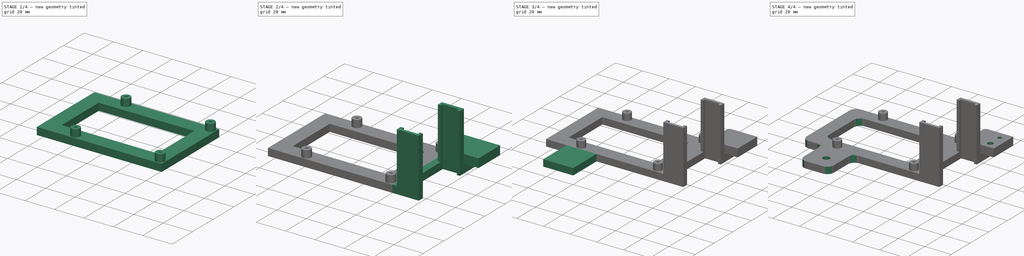
[diagram: build sequence overview — one tinted view per stage of 4, left to right]
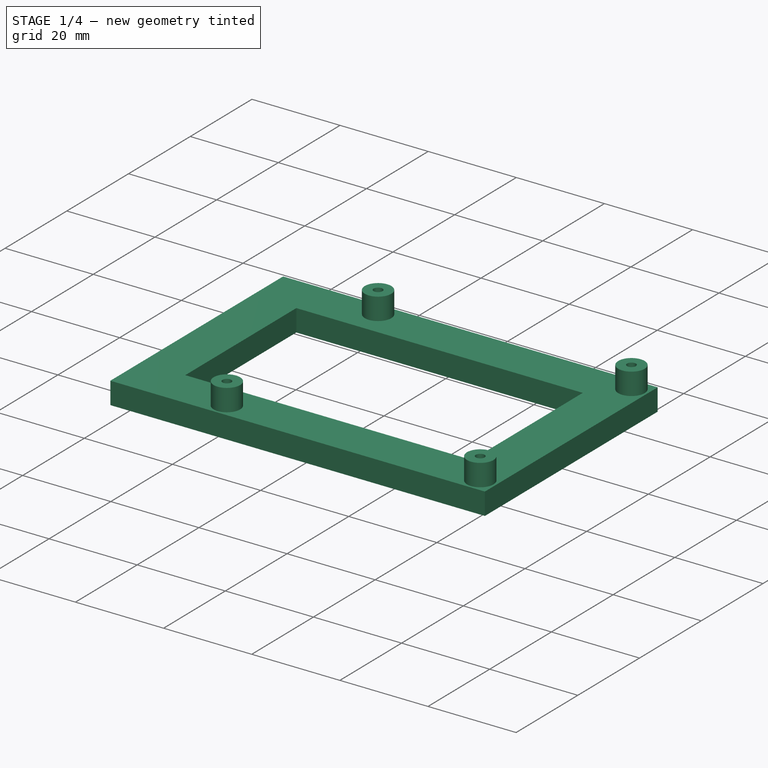
[diagram: stage 1 of 4 — iso view after this stage's code; geometry added in this stage tinted green]
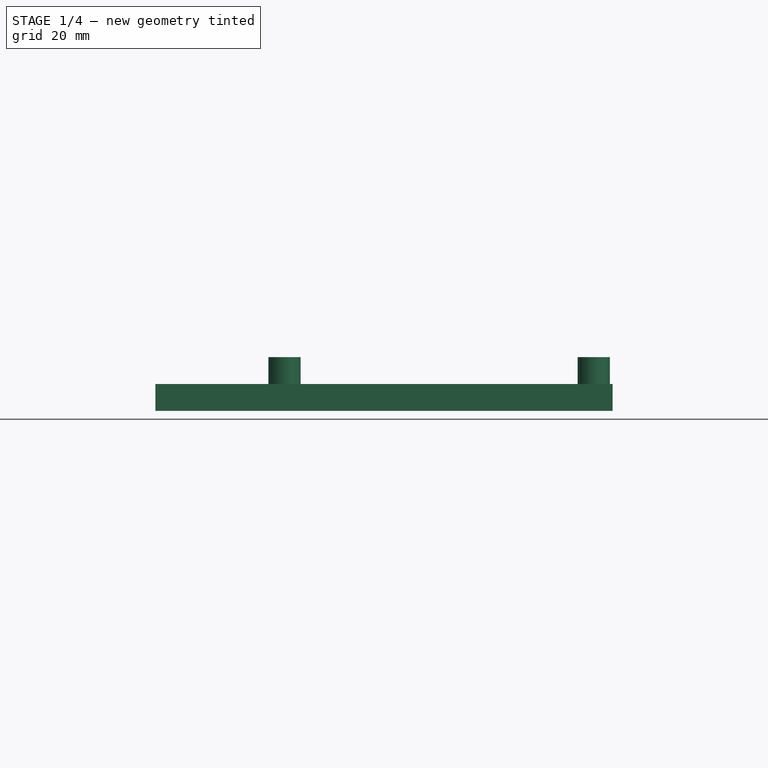
[diagram: stage 1 of 4 — front view after this stage's code; geometry added in this stage tinted green]
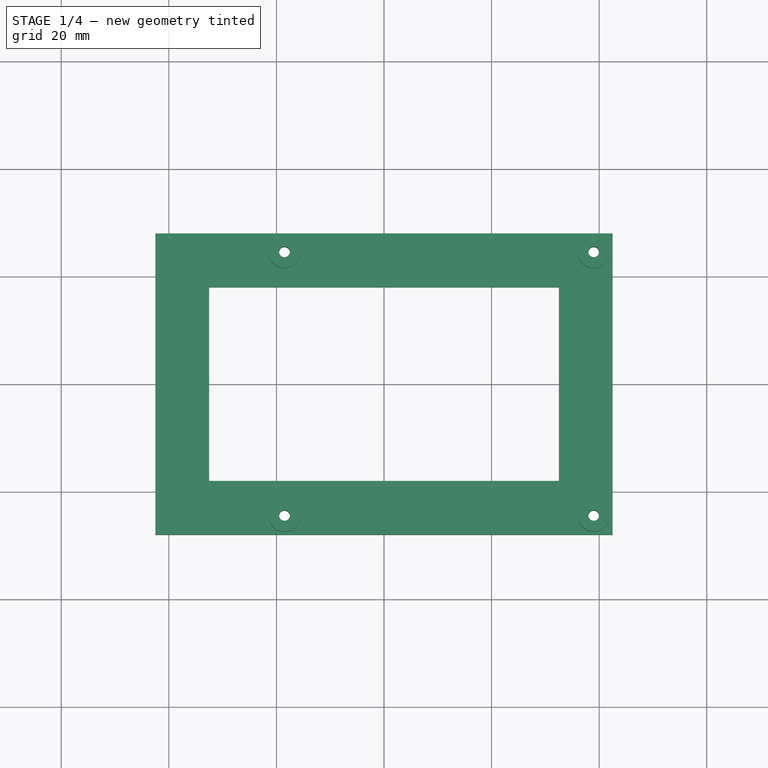
[diagram: stage 1 of 4 — top view after this stage's code; geometry added in this stage tinted green]
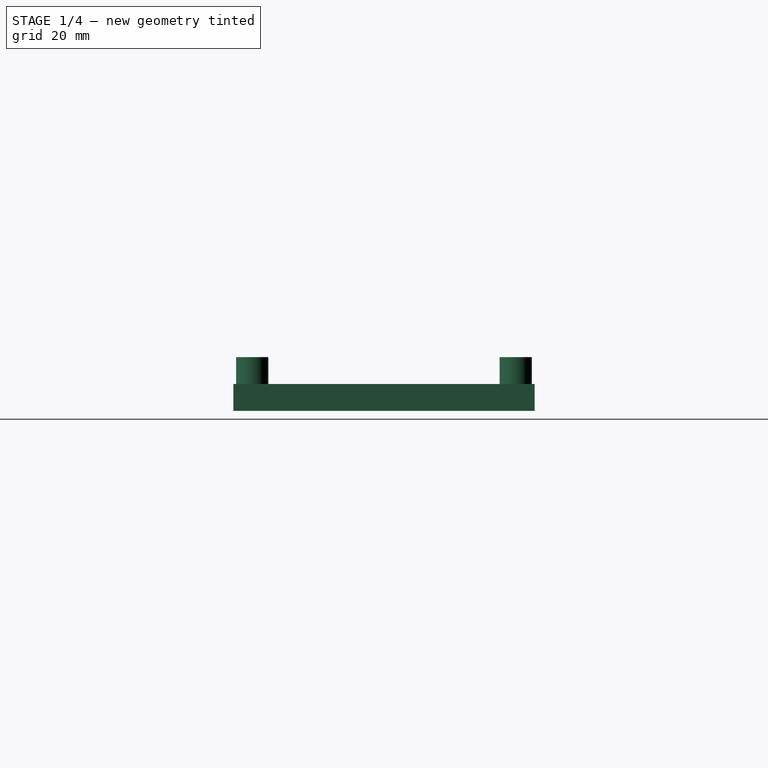
[diagram: stage 1 of 4 — right view after this stage's code; geometry added in this stage tinted green]
FCSTD DOCUMENT  (FreeCAD 0.16R6706 (Git))
Label: PS Raspberry
License: All rights reserved
LicenseURL: http://en.wikipedia.org/wiki/All_rights_reserved
objects: Sketcher::SketchObject×10, PartDesign::Pad×6, PartDesign::Pocket×4, PartDesign::Fillet×4
note: 34 computed .brp shape members not serialized (recipe doc carries the construction recipe); baked Part::Feature solids carry a one-line shape summary decoded from their .brp

FEATURE [Sketcher::SketchObject] Sketch
  sketch-geometry (4):
    g0: LineSegment StartX=-42.5 StartY=28 StartZ=0 EndX=42.5 EndY=28 EndZ=0
    g1: LineSegment StartX=42.5 StartY=28 StartZ=0 EndX=42.5 EndY=-28 EndZ=0
    g2: LineSegment StartX=42.5 StartY=-28 StartZ=0 EndX=-42.5 EndY=-28 EndZ=0
    g3: LineSegment StartX=-42.5 StartY=-28 StartZ=0 EndX=-42.5 EndY=28 EndZ=0
  constraints (12):
    c: Coincident(g0,g1)
    c: Coincident(g1,g2)
    c: Coincident(g2,g3)
    c: Coincident(g3,g0)
    c: Horizontal(g0)
    c: Horizontal(g2)
    c: Vertical(g1)
    c: Vertical(g3)
    c: DistanceX(g0,g0) = 85
    c: DistanceY(g3,g3) = 56
    c: DistanceY(g-1,g0) = 28
    c: DistanceX(g0,g-1) = 42.5
FEATURE [PartDesign::Pad] Pad
  Length = 5
  Length2 = 100
  Sketch = -> Sketch
  Type = 0
FEATURE [Sketcher::SketchObject] Sketch001
  ExternalGeometry = -> [Pad]
  Placement = pos=(0,0,5) rot=(0,0,1;0rad)
  Support = -> Pad [Face6]
  sketch-geometry (4):
    g0: LineSegment StartX=-32.5 StartY=18 StartZ=0 EndX=32.5 EndY=18 EndZ=0
    g1: LineSegment StartX=32.5 StartY=18 StartZ=0 EndX=32.5 EndY=-18 EndZ=0
    g2: LineSegment StartX=32.5 StartY=-18 StartZ=0 EndX=-32.5 EndY=-18 EndZ=0
    g3: LineSegment StartX=-32.5 StartY=-18 StartZ=0 EndX=-32.5 EndY=18 EndZ=0
  constraints (12):
    c: Coincident(g0,g1)
    c: Coincident(g1,g2)
    c: Coincident(g2,g3)
    c: Coincident(g3,g0)
    c: Horizontal(g0)
    c: Horizontal(g2)
    c: Vertical(g1)
    c: Vertical(g3)
    c: DistanceX(g0,g-5) = 10
    c: DistanceX(g-4,g0) = 10
    c: DistanceY(g0,g-4) = 10
    c: DistanceY(g-6,g1) = 10
FEATURE [PartDesign::Pocket] Pocket
  Length = 5
  Sketch = -> Sketch001
  Type = 1
FEATURE [Sketcher::SketchObject] Sketch002
  ExternalGeometry = -> [Pocket]
  Placement = pos=(0,0,5) rot=(0,0,1;0rad)
  Support = -> Pocket [Face5]
  sketch-geometry (4):
    g0: Circle CenterX=39 CenterY=24.5 CenterZ=0 NormalX=0 NormalY=0 NormalZ=1 Radius=3
    g1: Circle CenterX=-18.5 CenterY=24.5 CenterZ=0 NormalX=0 NormalY=0 NormalZ=1 Radius=3
    g2: Circle CenterX=-18.5 CenterY=-24.5 CenterZ=0 NormalX=0 NormalY=0 NormalZ=1 Radius=3
    g3: Circle CenterX=39 CenterY=-24.5 CenterZ=0 NormalX=0 NormalY=0 NormalZ=1 Radius=3
  constraints (12):
    c: Radius(g0) = 3
    c: Radius(g1) = 3
    c: Radius(g3) = 3
    c: Radius(g2) = 3
    c: DistanceY(g3,g0) = 49
    c: DistanceY(g-1,g0) = 24.5
    c: DistanceX(g0,g-3) = 3.5
    c: DistanceX(g3,g-3) = 3.5
    c: DistanceX(g1,g0) = 57.5
    c: DistanceX(g2,g3) = 57.5
    c: DistanceY(g-1,g1) = 24.5
    c: DistanceY(g2,g1) = 49
FEATURE [PartDesign::Pad] Pad001
  Length = 5
  Length2 = 100
  Sketch = -> Sketch002
  Type = 0
FEATURE [Sketcher::SketchObject] Sketch003
  ExternalGeometry = -> [Pad001]
  Placement = pos=(0,0,10) rot=(0,0,1;0rad)
  Support = -> Pad001 [Face18]
  sketch-geometry (4):
    g0: Circle CenterX=-18.5 CenterY=24.5 CenterZ=0 NormalX=0 NormalY=0 NormalZ=1 Radius=1
    g1: Circle CenterX=-18.5 CenterY=-24.5 CenterZ=0 NormalX=0 NormalY=0 NormalZ=1 Radius=1
    g2: Circle CenterX=39 CenterY=24.5 CenterZ=0 NormalX=0 NormalY=0 NormalZ=1 Radius=1
    g3: Circle CenterX=39 CenterY=-24.5 CenterZ=0 NormalX=0 NormalY=0 NormalZ=1 Radius=1
  constraints (8):
    c: Coincident(g0,g-3)
    c: Coincident(g1,g-6)
    c: Coincident(g2,g-4)
    c: Coincident(g3,g-5)
    c: Radius(g3) = 1
    c: Radius(g1) = 1
    c: Radius(g0) = 1
    c: Radius(g2) = 1
FEATURE [PartDesign::Pocket] Pocket001
  Length = 5
  Sketch = -> Sketch003
  Type = 1
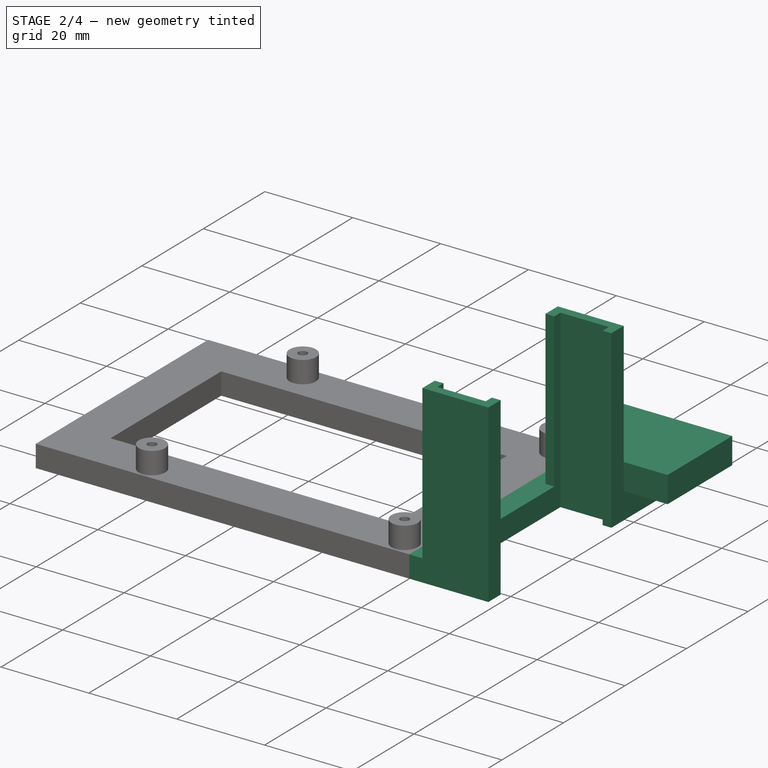
[diagram: stage 2 of 4 — iso view after this stage's code; geometry added in this stage tinted green]
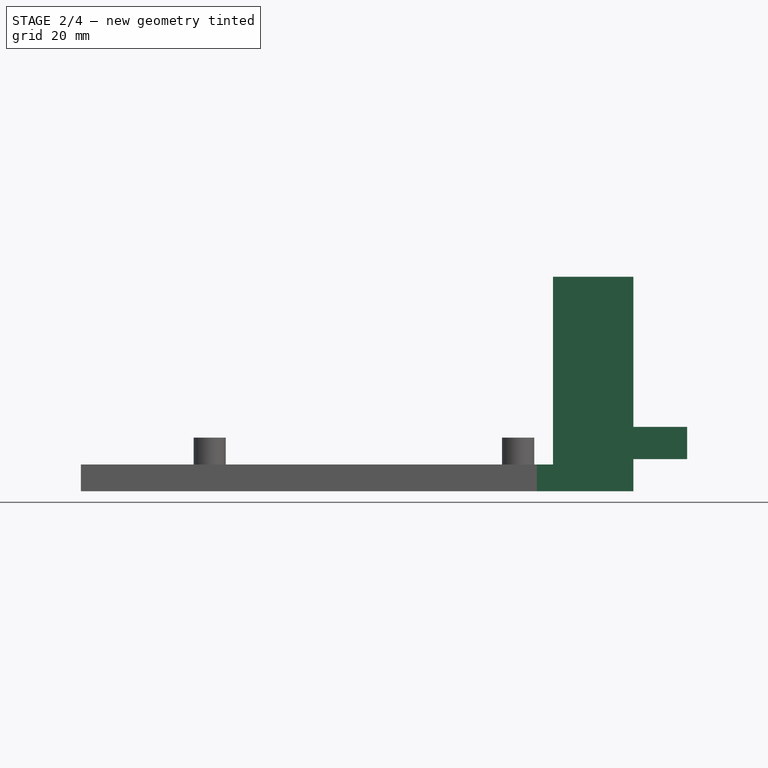
[diagram: stage 2 of 4 — front view after this stage's code; geometry added in this stage tinted green]
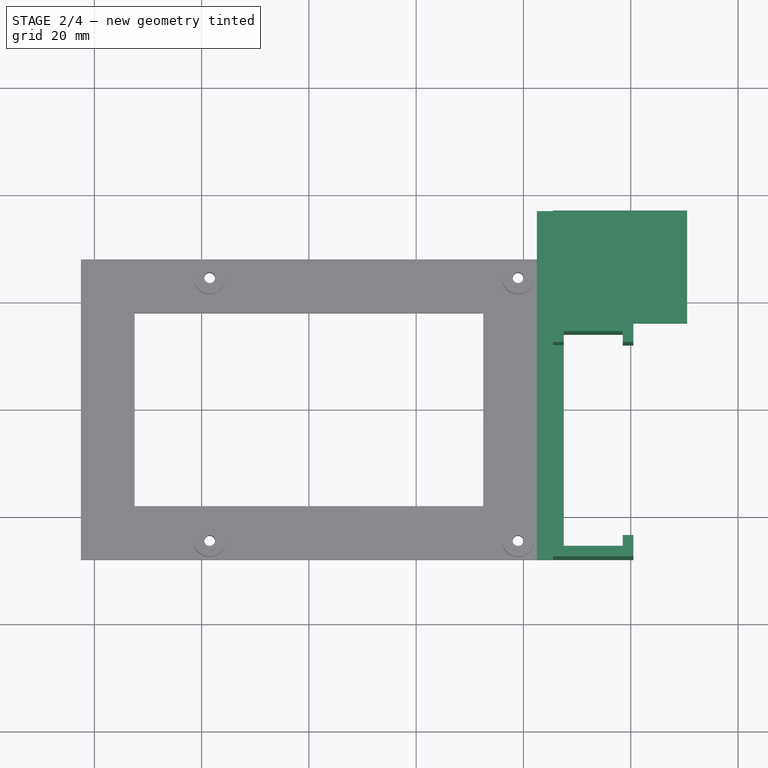
[diagram: stage 2 of 4 — top view after this stage's code; geometry added in this stage tinted green]
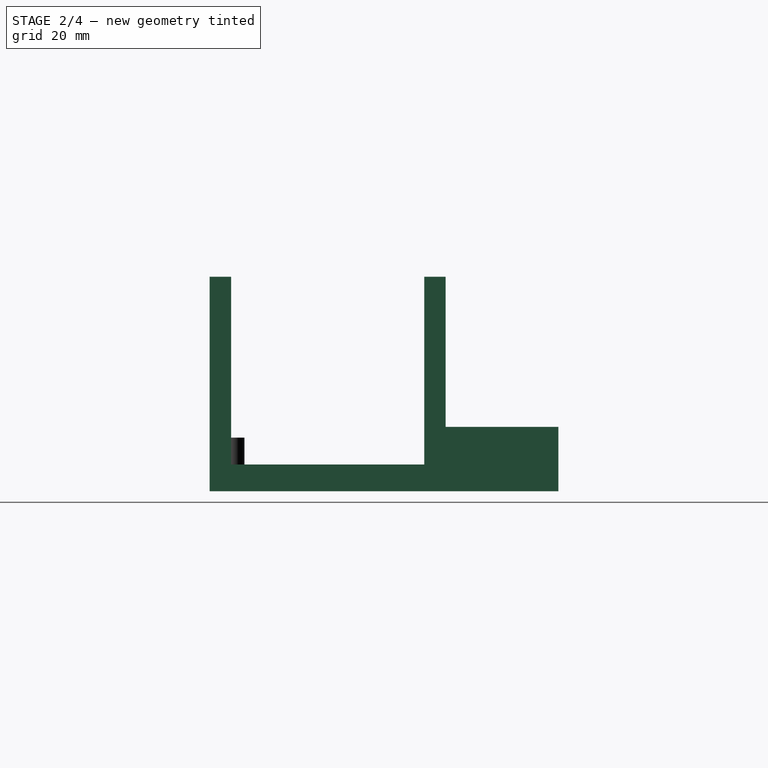
[diagram: stage 2 of 4 — right view after this stage's code; geometry added in this stage tinted green]
FEATURE [Sketcher::SketchObject] Sketch004
  ExternalGeometry = -> [Pocket001]
  Placement = pos=(42.5,0,0) rot=(0.57735,0.57735,0.57735;2.0944rad)
  Support = -> Pocket001 [Face3]
  sketch-geometry (4):
    g0: LineSegment StartX=-28 StartY=5 StartZ=0 EndX=16 EndY=5 EndZ=0
    g1: LineSegment StartX=16 StartY=5 StartZ=0 EndX=16 EndY=0 EndZ=0
    g2: LineSegment StartX=16 StartY=0 StartZ=0 EndX=-28 EndY=0 EndZ=0
    g3: LineSegment StartX=-28 StartY=0 StartZ=0 EndX=-28 EndY=5 EndZ=0
  constraints (12):
    c: Coincident(g0,g1)
    c: Coincident(g1,g2)
    c: Coincident(g2,g3)
    c: Coincident(g3,g0)
    c: Horizontal(g0)
    c: Horizontal(g2)
    c: Vertical(g1)
    c: Vertical(g3)
    c: DistanceX(g2,g2) = 44
    c: DistanceY(g1,g1) = 5
    c: DistanceX(g2,g-4) = 0
    c: DistanceY(g2,g-4) = 0
FEATURE [PartDesign::Pad] Pad002
  Length = 5
  Length2 = 100
  Sketch = -> Sketch004
  Type = 0
FEATURE [Sketcher::SketchObject] Sketch005
  ExternalGeometry = -> [Pad002]
  Placement = pos=(0,0,0) rot=(1,0,0;3.14159rad)
  Support = -> Pad002 [Face8]
  sketch-geometry (16):
    g0: LineSegment StartX=45.5 StartY=28 StartZ=0 EndX=45.5 EndY=24 EndZ=0
    g1: LineSegment StartX=45.5 StartY=24 StartZ=0 EndX=47.5 EndY=24 EndZ=0
    g2: LineSegment StartX=47.5 StartY=24 StartZ=0 EndX=47.5 EndY=26 EndZ=0
    g3: LineSegment StartX=47.5 StartY=26 StartZ=0 EndX=58.5 EndY=26 EndZ=0
    g4: LineSegment StartX=58.5 StartY=26 StartZ=0 EndX=58.5 EndY=24 EndZ=0
    g5: LineSegment StartX=58.5 StartY=24 StartZ=0 EndX=60.5 EndY=24 EndZ=0
    g6: LineSegment StartX=60.5 StartY=24 StartZ=0 EndX=60.5 EndY=28 EndZ=0
    g7: LineSegment StartX=60.5 StartY=28 StartZ=0 EndX=45.5 EndY=28 EndZ=0
    g8: LineSegment StartX=45.5 StartY=-16 StartZ=0 EndX=45.5 EndY=-12 EndZ=0
    g9: LineSegment StartX=45.5 StartY=-12 StartZ=0 EndX=47.5 EndY=-12 EndZ=0
    g10: LineSegment StartX=47.5 StartY=-12 StartZ=0 EndX=47.5 EndY=-14 EndZ=0
    g11: LineSegment StartX=47.5 StartY=-14 StartZ=0 EndX=58.5 EndY=-14 EndZ=0
    g12: LineSegment StartX=58.5 StartY=-14 StartZ=0 EndX=58.5 EndY=-12 EndZ=0
    g13: LineSegment StartX=58.5 StartY=-12 StartZ=0 EndX=60.5 EndY=-12 EndZ=0
    g14: LineSegment StartX=60.5 StartY=-12 StartZ=0 EndX=60.5 EndY=-16 EndZ=0
    g15: LineSegment StartX=60.5 StartY=-16 StartZ=0 EndX=45.5 EndY=-16 EndZ=0
  constraints (48):
    c: PointOnObject(g0,g-3)
    c: Vertical(g0)
    c: Coincident(g0,g1)
    c: PointOnObject(g1,g-4)
    c: Coincident(g1,g2)
    c: PointOnObject(g2,g-4)
    c: Coincident(g2,g3)
    c: Horizontal(g3)
    c: Coincident(g3,g4)
    c: Vertical(g4)
    c: Coincident(g4,g5)
    c: Coincident(g5,g6)
    c: Vertical(g6)
    c: Coincident(g6,g7)
    c: Coincident(g7,g0)
    c: Horizontal(g7)
    c: Horizontal(g5)
    c: Horizontal(g1)
    c: PointOnObject(g8,g-5)
    c: Vertical(g8)
    c: Coincident(g8,g9)
    c: PointOnObject(g9,g-4)
    c: Horizontal(g9)
    c: Coincident(g9,g10)
    c: PointOnObject(g10,g-4)
    c: Coincident(g10,g11)
    c: Horizontal(g11)
    c: Coincident(g11,g12)
    c: Vertical(g12)
    c: Coincident(g12,g13)
    c: Horizontal(g13)
    c: Coincident(g13,g14)
    c: Vertical(g14)
    c: Coincident(g14,g15)
    c: Coincident(g15,g8)
    c: Horizontal(g15)
    c: DistanceY(g4,g3) = 2
    c: DistanceY(g3,g6) = 2
    c: DistanceY(g1,g2) = 2
    c: DistanceX(g4,g5) = 2
    c: DistanceX(g0,g1) = 2
    c: DistanceX(g2,g3) = 11
    c: DistanceX(g11,g14) = 2
    c: DistanceX(g8,g10) = 2
    c: DistanceY(g10,g9) = 2
    c: DistanceY(g12,g12) = 2
    c: DistanceY(g14,g11) = 2
    c: DistanceX(g10,g11) = 11
FEATURE [PartDesign::Pad] Pad003
  Length = 40
  Length2 = 100
  Reversed = true
  Sketch = -> Sketch005
  Type = 0
FEATURE [Sketcher::SketchObject] Sketch006
  ExternalGeometry = -> [Pad003]
  Placement = pos=(0,16,0) rot=(0,0.707107,0.707107;3.14159rad)
  Support = -> Pad003 [Face36]
  sketch-geometry (8):
    g0: LineSegment StartX=-42.5 StartY=0 StartZ=0 EndX=-42.5 EndY=5 EndZ=0
    g1: LineSegment StartX=-42.5 StartY=5 StartZ=0 EndX=-45.5 EndY=5 EndZ=0
    g2: LineSegment StartX=-45.5 StartY=5 StartZ=0 EndX=-45.5 EndY=12 EndZ=0
    g3: LineSegment StartX=-45.5 StartY=12 StartZ=0 EndX=-70.5 EndY=12 EndZ=0
    g4: LineSegment StartX=-70.5 StartY=12 StartZ=0 EndX=-70.5 EndY=6 EndZ=0
    g5: LineSegment StartX=-70.5 StartY=6 StartZ=0 EndX=-60.5 EndY=6 EndZ=0
    g6: LineSegment StartX=-60.5 StartY=6 StartZ=0 EndX=-60.5 EndY=0 EndZ=0
    g7: LineSegment StartX=-60.5 StartY=0 StartZ=0 EndX=-42.5 EndY=0 EndZ=0
  constraints (20):
    c: Coincident(g-8,g0)
    c: Coincident(g0,g-4)
    c: Coincident(g0,g1)
    c: Coincident(g1,g-5)
    c: Coincident(g1,g2)
    c: PointOnObject(g2,g-5)
    c: Coincident(g2,g3)
    c: Horizontal(g3)
    c: Coincident(g3,g4)
    c: Vertical(g4)
    c: Coincident(g4,g5)
    c: PointOnObject(g5,g-6)
    c: Horizontal(g5)
    c: Coincident(g5,g6)
    c: Coincident(g6,g-7)
    c: Coincident(g6,g7)
    c: Coincident(g7,g0)
    c: DistanceX(g5,g5) = 10
    c: DistanceY(g-9,g2) = 12
    c: DistanceY(g6,g5) = 6
FEATURE [PartDesign::Pad] Pad004
  Length = 21
  Length2 = 100
  Sketch = -> Sketch006
  Type = 0
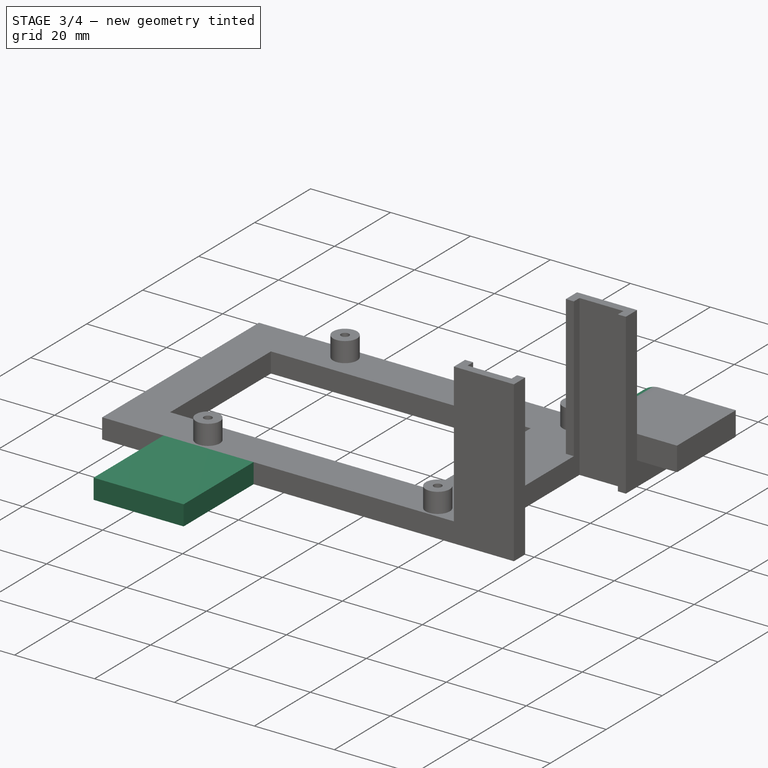
[diagram: stage 3 of 4 — iso view after this stage's code; geometry added in this stage tinted green]
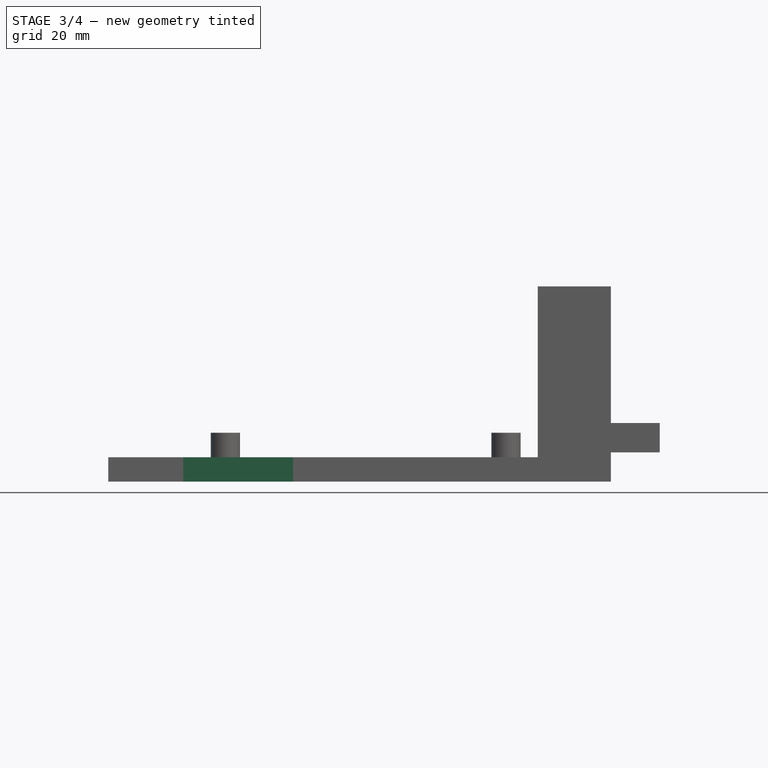
[diagram: stage 3 of 4 — front view after this stage's code; geometry added in this stage tinted green]
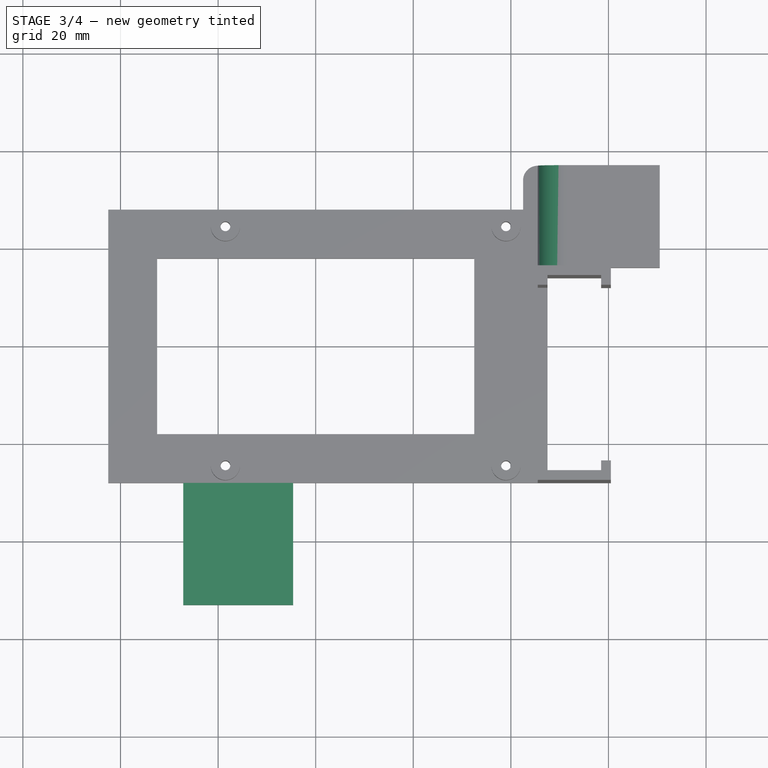
[diagram: stage 3 of 4 — top view after this stage's code; geometry added in this stage tinted green]
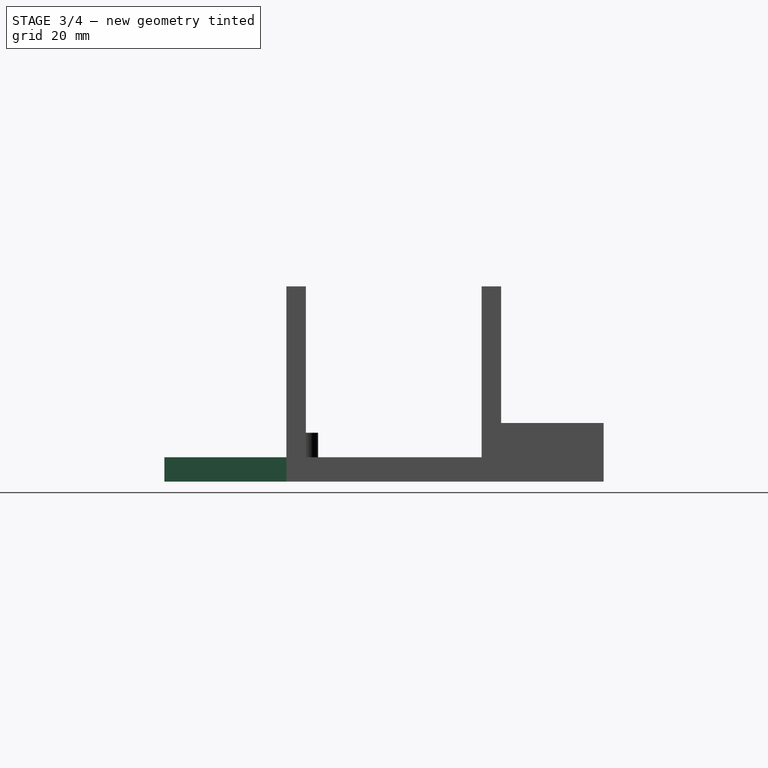
[diagram: stage 3 of 4 — right view after this stage's code; geometry added in this stage tinted green]
FEATURE [PartDesign::Fillet] Fillet
  Base = -> Pad004 [Edge96]
  Radius = 6
FEATURE [PartDesign::Fillet] Fillet001
  Base = -> Fillet [Edge5]
  Radius = 3
FEATURE [Sketcher::SketchObject] Sketch007
  ExternalGeometry = -> [Fillet001]
  Placement = pos=(0,-28,0) rot=(1,0,0;1.5708rad)
  Support = -> Fillet001 [Face25]
  sketch-geometry (4):
    g0: LineSegment StartX=-27.1413 StartY=5 StartZ=0 EndX=-4.62448 EndY=5 EndZ=0
    g1: LineSegment StartX=-4.62448 StartY=5 StartZ=0 EndX=-4.62448 EndY=0 EndZ=0
    g2: LineSegment StartX=-4.62448 StartY=0 StartZ=0 EndX=-27.1413 EndY=0 EndZ=0
    g3: LineSegment StartX=-27.1413 StartY=0 StartZ=0 EndX=-27.1413 EndY=5 EndZ=0
  constraints (10):
    c: Coincident(g0,g1)
    c: Coincident(g1,g2)
    c: Coincident(g2,g3)
    c: Coincident(g3,g0)
    c: Horizontal(g0)
    c: Horizontal(g2)
    c: Vertical(g1)
    c: Vertical(g3)
    c: PointOnObject(g0,g-3)
    c: PointOnObject(g1,g-4)
FEATURE [PartDesign::Pad] Pad005
  Length = 25
  Length2 = 100
  Sketch = -> Sketch007
  Type = 0
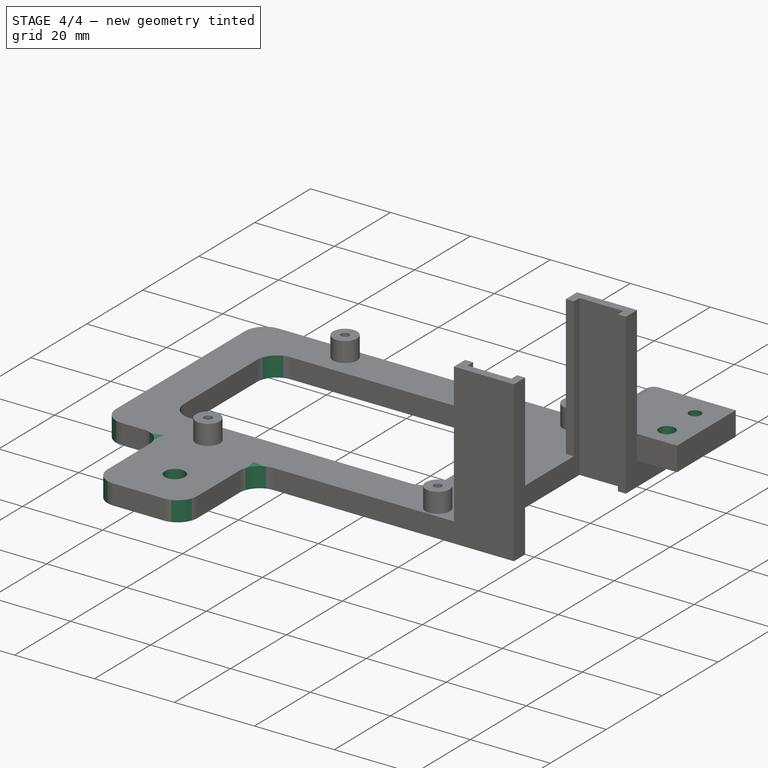
[diagram: stage 4 of 4 — iso view after this stage's code; geometry added in this stage tinted green]
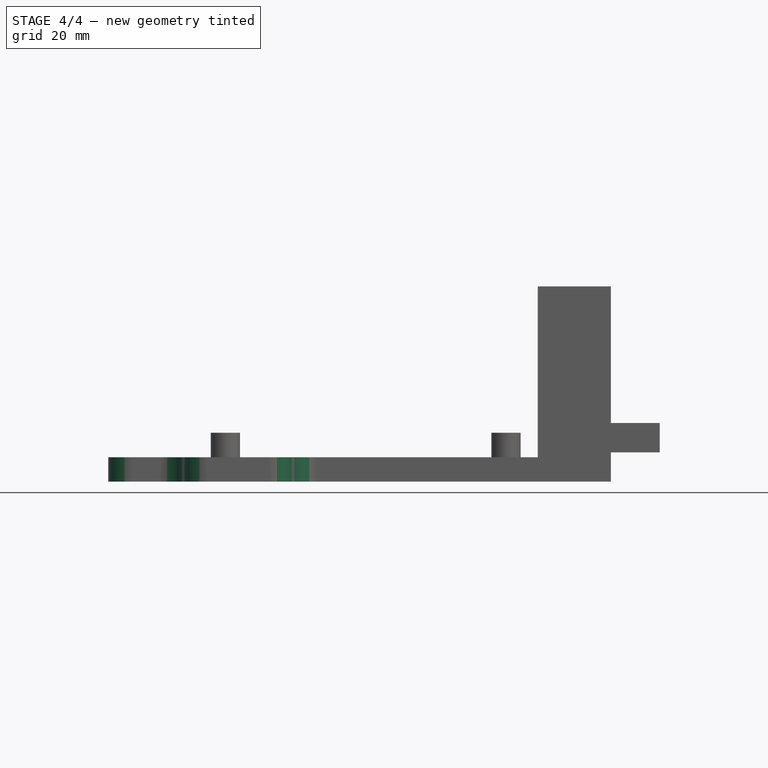
[diagram: stage 4 of 4 — front view after this stage's code; geometry added in this stage tinted green]
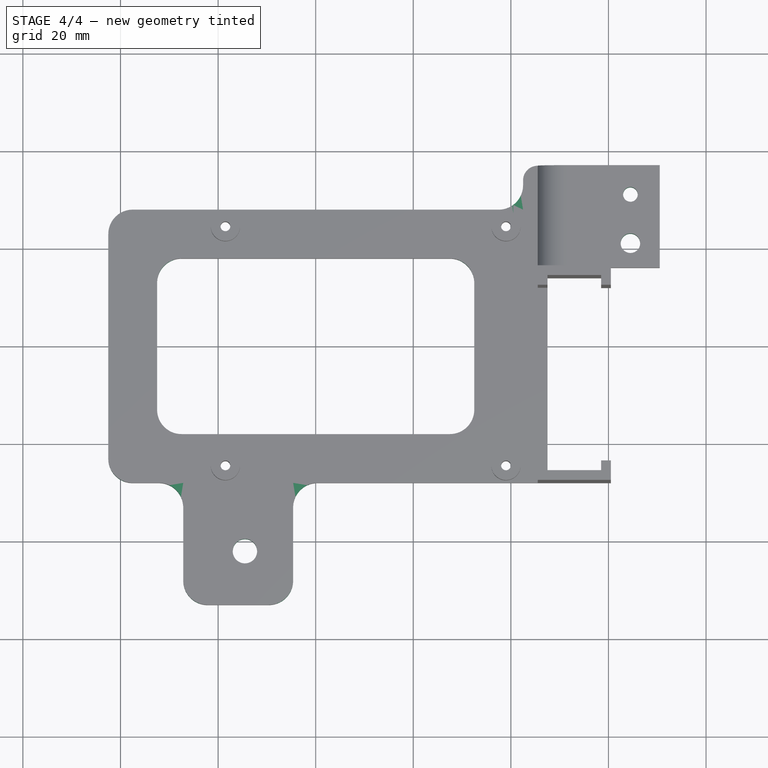
[diagram: stage 4 of 4 — top view after this stage's code; geometry added in this stage tinted green]
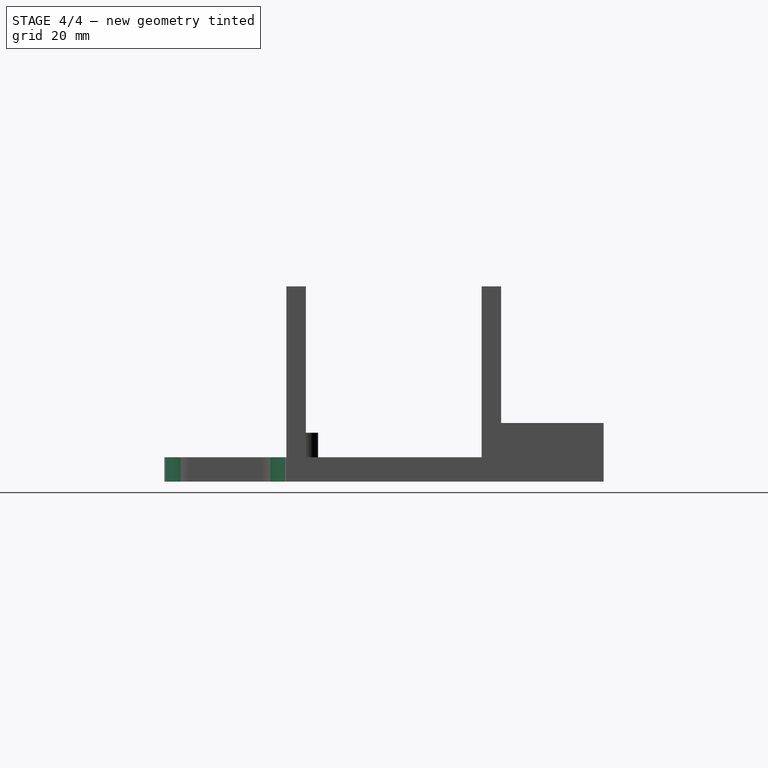
[diagram: stage 4 of 4 — right view after this stage's code; geometry added in this stage tinted green]
FEATURE [PartDesign::Fillet] Fillet002
  Base = -> Pad005 [Edge55,Edge58,Edge57,Edge43,Edge42,Edge12,Edge4,Edge2,Edge8,Edge56]
  Radius = 5
FEATURE [PartDesign::Fillet] Fillet003
  Base = -> Fillet002 [Edge71]
  Radius = 5
FEATURE [Sketcher::SketchObject] Sketch008
  ExternalGeometry = -> [Fillet003]
  Placement = pos=(0,0,5) rot=(0,0,1;0rad)
  Support = -> Fillet003 [Face11]
  sketch-geometry (1):
    g0: Circle CenterX=-14.5 CenterY=-42 CenterZ=0 NormalX=0 NormalY=0 NormalZ=1 Radius=2.5
  constraints (3):
    c: DistanceX(g0,g-3) = 75
    c: DistanceY(g0,g-4) = 17.5
    c: Radius(g0) = 2.5
FEATURE [PartDesign::Pocket] Pocket002
  Length = 5
  Sketch = -> Sketch008
  Type = 1
FEATURE [Sketcher::SketchObject] Sketch009
  ExternalGeometry = -> [Pocket002]
  Placement = pos=(0,0,12) rot=(0,0,1;0rad)
  Support = -> Pocket002 [Face70]
  sketch-geometry (2):
    g0: Circle CenterX=64.5 CenterY=31 CenterZ=0 NormalX=0 NormalY=0 NormalZ=1 Radius=1.5
    g1: Circle CenterX=64.5 CenterY=21 CenterZ=0 NormalX=0 NormalY=0 NormalZ=1 Radius=2
  constraints (6):
    c: Radius(g1) = 2
    c: Radius(g0) = 1.5
    c: DistanceY(g-3,g1) = 9
    c: DistanceY(g1,g0) = 10
    c: DistanceX(g-4,g0) = 4
    c: DistanceX(g-4,g1) = 4
FEATURE [PartDesign::Pocket] Pocket003
  Length = 5
  Sketch = -> Sketch009
  Type = 1
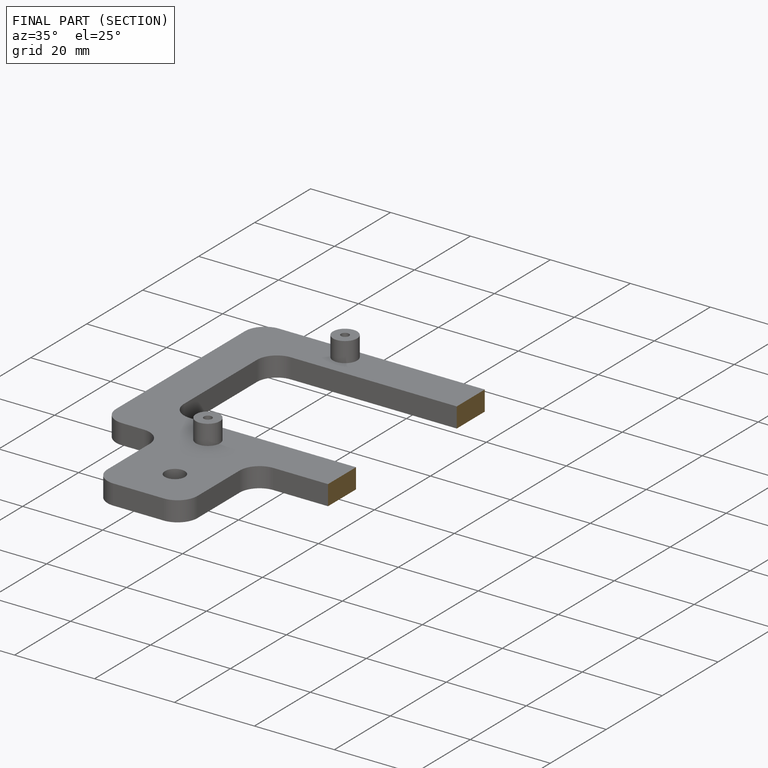
[diagram: finished part — half-section view (interior)]
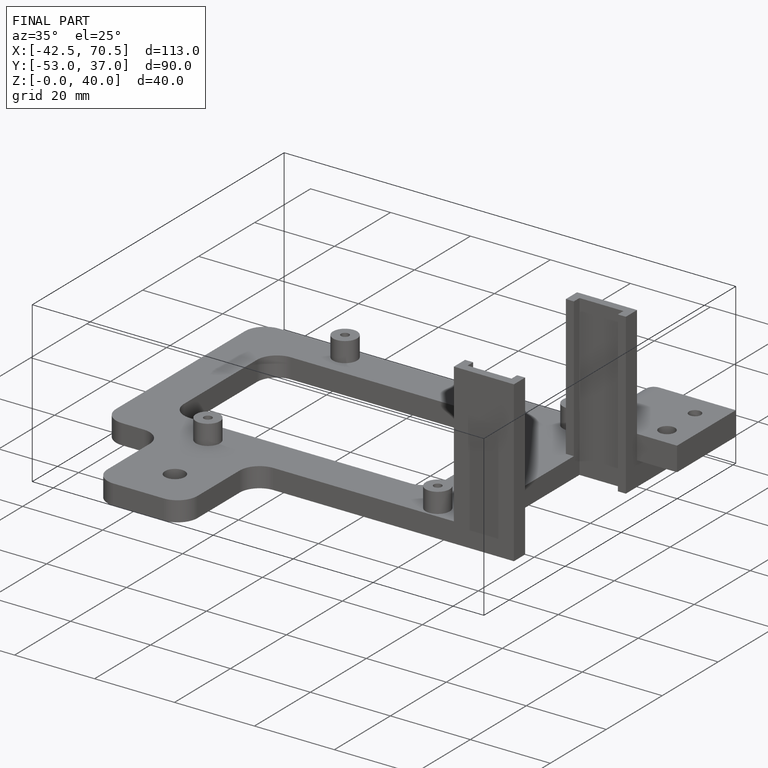
[diagram: finished part — iso view with bounding-box wireframe]
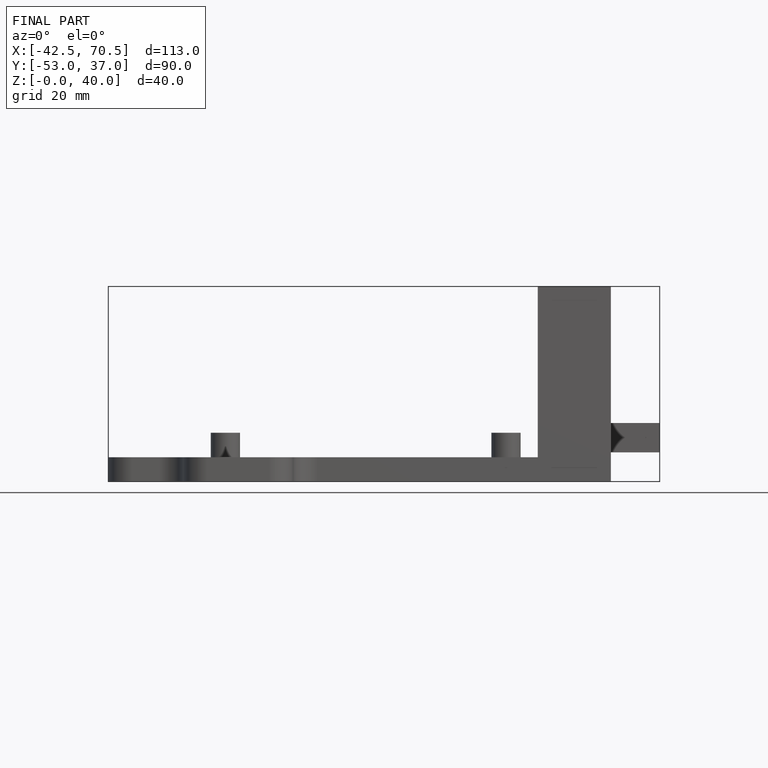
[diagram: finished part — front view with bounding-box wireframe]
